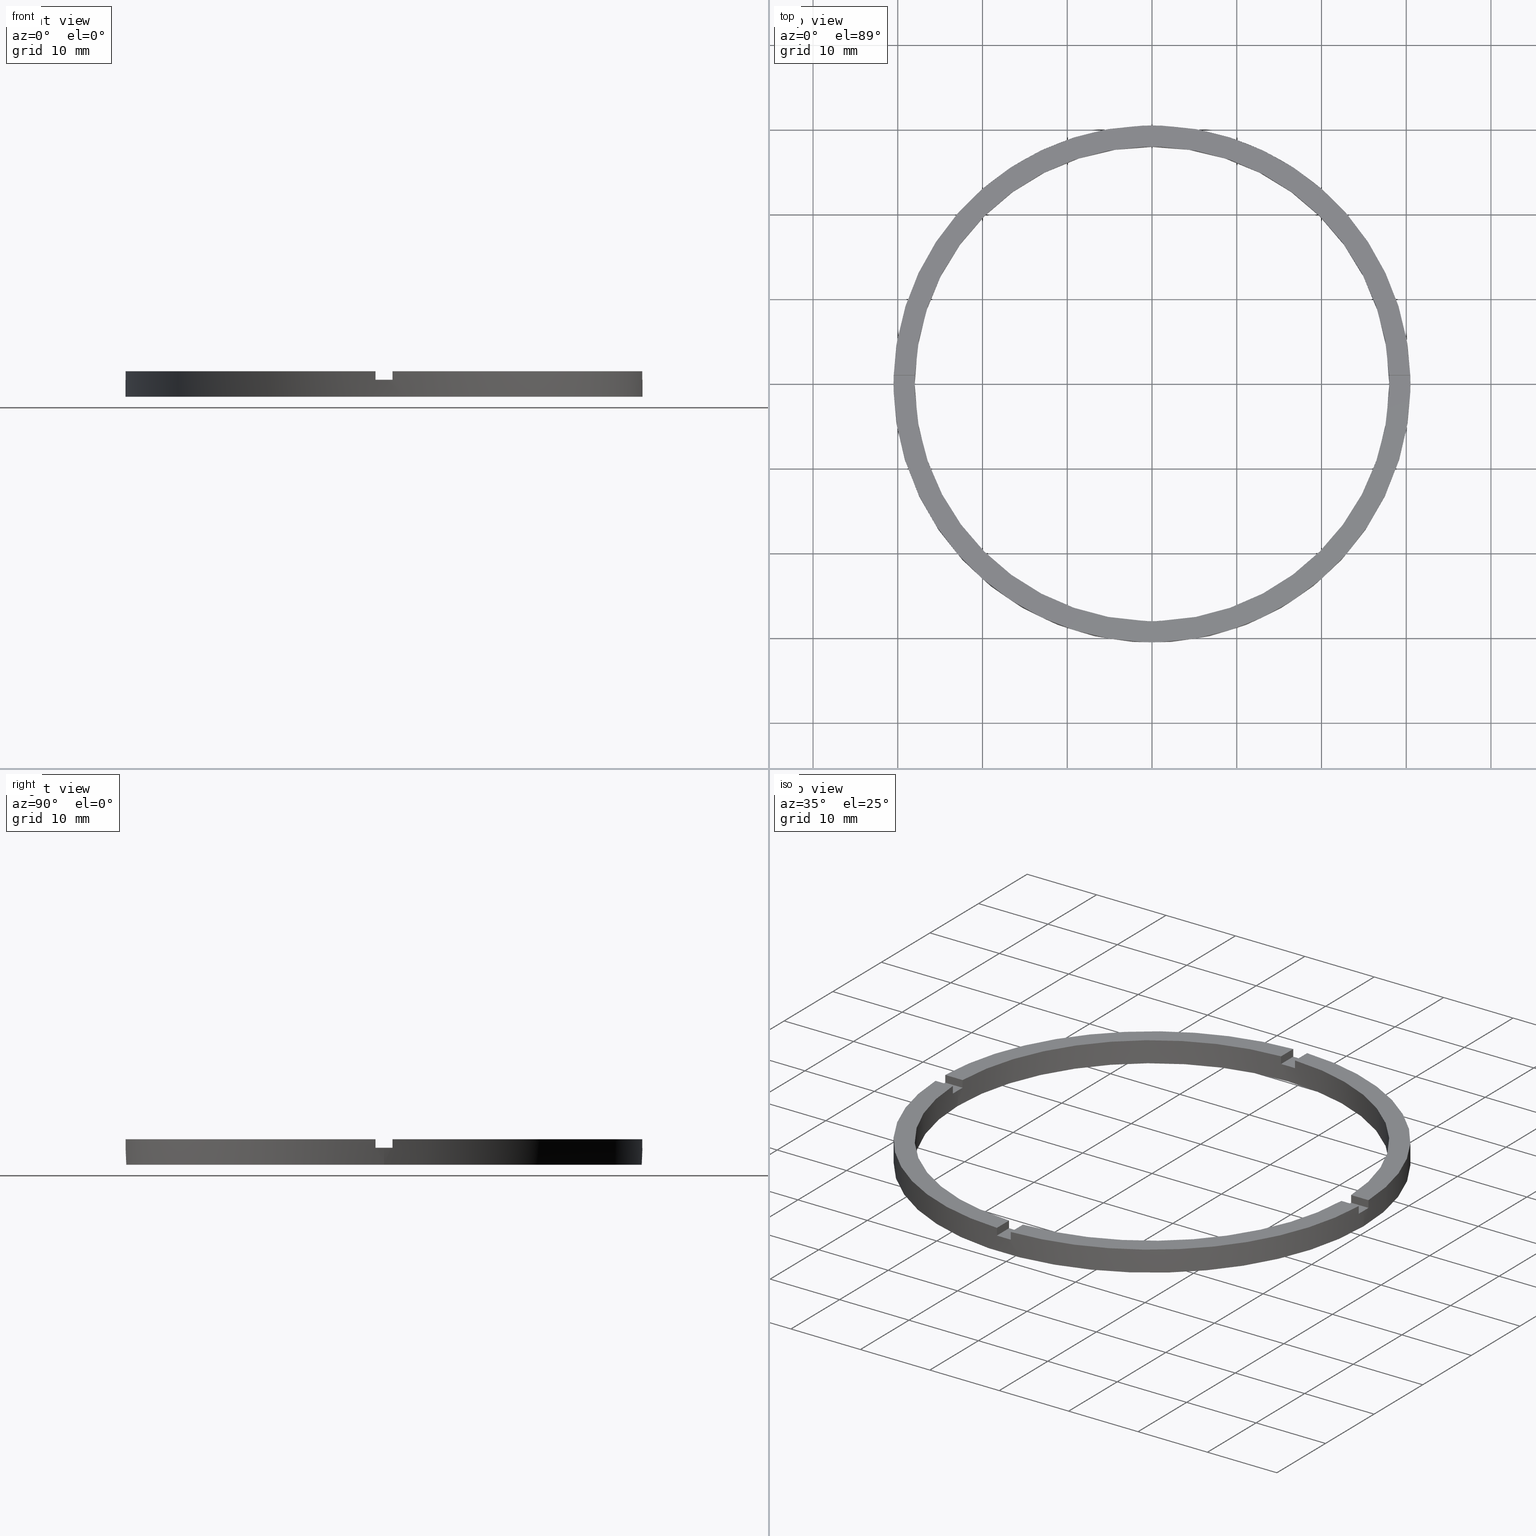
[diagram: canonical four-view strip — front | top / right | iso, engineering-drawing reading convention]
A machine part, canonical four-view strip (front | top / right | iso — engineering-drawing reading convention). The complete STEP part file that produces these views, byte-faithful:
ISO-10303-21;
HEADER;
FILE_DESCRIPTION (( 'STEP AP203' ),
    '1' );
FILE_NAME ('514127.step',
    '2024-12-26T02:40:05',
    ( 'MSI' ),
    ( '' ),
    'SwSTEP 2.0',
    'SolidWorks 2020',
    '' );
FILE_SCHEMA (( 'CONFIG_CONTROL_DESIGN' ));
ENDSEC;

DATA;
#1 = VERTEX_POINT ( 'NONE', #757 ) ;
#2 = ORIENTED_EDGE ( 'NONE', *, *, #357, .T. ) ;
#3 = ORIENTED_EDGE ( 'NONE', *, *, #407, .F. ) ;
#4 = CARTESIAN_POINT ( 'NONE',  ( 0.000000000000000000, 0.000000000000000000, 0.000000000000000000 ) ) ;
#5 = EDGE_CURVE ( 'NONE', #68, #734, #459, .T. ) ;
#6 = ORIENTED_EDGE ( 'NONE', *, *, #520, .T. ) ;
#7 = DIRECTION ( 'NONE',  ( 1.000000000000000000, 0.000000000000000000, 0.000000000000000000 ) ) ;
#8 = AXIS2_PLACEMENT_3D ( 'NONE', #144, #242, #662 ) ;
#9 = DIRECTION ( 'NONE',  ( -6.505213034913025371E-17, 1.000000000000000000, 0.000000000000000000 ) ) ;
#10 = DIRECTION ( 'NONE',  ( -0.000000000000000000, 0.000000000000000000, 1.000000000000000000 ) ) ;
#11 = CC_DESIGN_DATE_AND_TIME_ASSIGNMENT ( #123, #100, ( #300 ) ) ;
#12 = DIRECTION ( 'NONE',  ( 0.000000000000000000, 0.000000000000000000, 1.000000000000000000 ) ) ;
#13 = DIRECTION ( 'NONE',  ( 0.000000000000000000, 0.000000000000000000, 1.000000000000000000 ) ) ;
#14 = ORIENTED_EDGE ( 'NONE', *, *, #295, .F. ) ;
#15 = AXIS2_PLACEMENT_3D ( 'NONE', #275, #617, #88 ) ;
#16 = DIRECTION ( 'NONE',  ( 0.000000000000000000, -0.000000000000000000, 1.000000000000000000 ) ) ;
#17 = VERTEX_POINT ( 'NONE', #565 ) ;
#18 = DIRECTION ( 'NONE',  ( -0.000000000000000000, -0.000000000000000000, -1.000000000000000000 ) ) ;
#19 = ORIENTED_EDGE ( 'NONE', *, *, #604, .F. ) ;
#20 = EDGE_CURVE ( 'NONE', #248, #194, #464, .T. ) ;
#21 = CARTESIAN_POINT ( 'NONE',  ( -20.50000000000018119, -1.000000000000023537, 3.000000000000000000 ) ) ;
#22 = CARTESIAN_POINT ( 'NONE',  ( 0.000000000000000000, 0.000000000000000000, 0.000000000000000000 ) ) ;
#23 = CARTESIAN_POINT ( 'NONE',  ( 30.50000000000000000, 3.735172737399427541E-15, 0.000000000000000000 ) ) ;
#24 = EDGE_CURVE ( 'NONE', #505, #68, #465, .T. ) ;
#25 = ORIENTED_EDGE ( 'NONE', *, *, #213, .T. ) ;
#26 = ORIENTED_EDGE ( 'NONE', *, *, #118, .F. ) ;
#27 = EDGE_CURVE ( 'NONE', #454, #270, #457, .T. ) ;
#28 = ADVANCED_FACE ( 'NONE', ( #218 ), #311, .T. ) ;
#29 = CARTESIAN_POINT ( 'NONE',  ( -30.48360214935236101, -1.000000000000025313, 2.000000000000000000 ) ) ;
#30 = DIRECTION ( 'NONE',  ( -0.000000000000000000, -0.000000000000000000, -1.000000000000000000 ) ) ;
#31 = DATE_TIME_ROLE ( 'creation_date' ) ;
#32 = DIRECTION ( 'NONE',  ( 1.000000000000000000, 0.000000000000000000, 0.000000000000000000 ) ) ;
#33 = PERSON ( 'δָ��', 'δָ��', 'δָ��', ('δָ��'), ('δָ��'), ('δָ��') ) ;
#34 = DIRECTION ( 'NONE',  ( 0.000000000000000000, 0.000000000000000000, 1.000000000000000000 ) ) ;
#35 = PERSON_AND_ORGANIZATION_ROLE ( 'classification_officer' ) ;
#36 = EDGE_CURVE ( 'NONE', #444, #713, #472, .T. ) ;
#37 = LINE ( 'NONE', #595, #304 ) ;
#38 = ORIENTED_EDGE ( 'NONE', *, *, #375, .F. ) ;
#39 = VECTOR ( 'NONE', #370, 1000.000000000000000 ) ;
#40 = DIRECTION ( 'NONE',  ( 1.000000000000000000, 0.000000000000000000, 0.000000000000000000 ) ) ;
#41 = AXIS2_PLACEMENT_3D ( 'NONE', #683, #758, #222 ) ;
#42 = ORIENTED_EDGE ( 'NONE', *, *, #118, .T. ) ;
#43 = CIRCLE ( 'NONE', #59, 28.00000000000000000 ) ;
#44 = EDGE_LOOP ( 'NONE', ( #682, #172, #761, #439, #690, #313, #38, #245, #564, #226, #285, #19 ) ) ;
#45 = ORIENTED_EDGE ( 'NONE', *, *, #235, .F. ) ;
#46 = LINE ( 'NONE', #323, #310 ) ;
#47 = APPROVAL ( #461, 'δָ��' ) ;
#48 = CIRCLE ( 'NONE', #552, 30.50000000000000000 ) ;
#49 = ADVANCED_FACE ( 'NONE', ( #474 ), #128, .T. ) ;
#50 = PERSON_AND_ORGANIZATION_ROLE ( 'design_owner' ) ;
#51 = DIRECTION ( 'NONE',  ( -1.951563910473907735E-16, 1.000000000000000000, 0.000000000000000000 ) ) ;
#52 = EDGE_CURVE ( 'NONE', #431, #582, #219, .T. ) ;
#53 = ORIENTED_EDGE ( 'NONE', *, *, #670, .T. ) ;
#54 = ORIENTED_EDGE ( 'NONE', *, *, #571, .F. ) ;
#55 = CARTESIAN_POINT ( 'NONE',  ( -1.000000000000024425, 30.48360214935236101, 2.000000000000000000 ) ) ;
#56 = ORIENTED_EDGE ( 'NONE', *, *, #71, .F. ) ;
#57 = EDGE_LOOP ( 'NONE', ( #188, #568, #54, #527, #272, #451, #269, #587, #319, #530, #64, #3 ) ) ;
#58 = EDGE_CURVE ( 'NONE', #276, #462, #726, .T. ) ;
#59 = AXIS2_PLACEMENT_3D ( 'NONE', #659, #72, #615 ) ;
#60 = EDGE_LOOP ( 'NONE', ( #251, #708, #423, #752 ) ) ;
#61 = CLOSED_SHELL ( 'NONE', ( #590, #284, #624, #395, #216, #94, #467, #642, #678, #650, #347, #49, #106, #741, #354, #632, #331, #154, #387, #529, #28 ) ) ;
#62 = DIRECTION ( 'NONE',  ( -1.000000000000000000, 0.000000000000000000, 0.000000000000000000 ) ) ;
#63 = DIRECTION ( 'NONE',  ( 1.000000000000000000, 0.000000000000000000, 0.000000000000000000 ) ) ;
#64 = ORIENTED_EDGE ( 'NONE', *, *, #129, .T. ) ;
#65 = EDGE_CURVE ( 'NONE', #274, #781, #180, .T. ) ;
#66 = CARTESIAN_POINT ( 'NONE',  ( 0.000000000000000000, 0.000000000000000000, 2.000000000000000000 ) ) ;
#67 = ORIENTED_EDGE ( 'NONE', *, *, #163, .F. ) ;
#68 = VERTEX_POINT ( 'NONE', #417 ) ;
#69 = CIRCLE ( 'NONE', #480, 28.00000000000000000 ) ;
#70 = DIRECTION ( 'NONE',  ( -0.000000000000000000, -0.000000000000000000, -1.000000000000000000 ) ) ;
#71 = EDGE_CURVE ( 'NONE', #253, #198, #171, .T. ) ;
#72 = DIRECTION ( 'NONE',  ( 0.000000000000000000, 0.000000000000000000, 1.000000000000000000 ) ) ;
#73 = CARTESIAN_POINT ( 'NONE',  ( 0.000000000000000000, 0.000000000000000000, 3.000000000000000000 ) ) ;
#74 = CIRCLE ( 'NONE', #202, 30.50000000000000000 ) ;
#75 = VECTOR ( 'NONE', #70, 1000.000000000000000 ) ;
#76 = FACE_OUTER_BOUND ( 'NONE', #290, .T. ) ;
#77 = CARTESIAN_POINT ( 'NONE',  ( 0.000000000000000000, 0.000000000000000000, 2.000000000000000000 ) ) ;
#78 = CYLINDRICAL_SURFACE ( 'NONE', #687, 30.50000000000000000 ) ;
#79 = CIRCLE ( 'NONE', #779, 28.00000000000000000 ) ;
#80 = VECTOR ( 'NONE', #600, 1000.000000000000000 ) ;
#81 = EDGE_CURVE ( 'NONE', #186, #318, #722, .T. ) ;
#82 = CARTESIAN_POINT ( 'NONE',  ( -1.000000000000024425, 30.48360214935236101, 3.000000000000000000 ) ) ;
#83 = VECTOR ( 'NONE', #217, 1000.000000000000000 ) ;
#84 = DIRECTION ( 'NONE',  ( -0.000000000000000000, -1.000000000000000000, -0.000000000000000000 ) ) ;
#85 = AXIS2_PLACEMENT_3D ( 'NONE', #141, #557, #623 ) ;
#86 = LINE ( 'NONE', #161, #602 ) ;
#87 = VECTOR ( 'NONE', #30, 1000.000000000000000 ) ;
#88 = DIRECTION ( 'NONE',  ( 1.000000000000000000, 0.000000000000000000, 0.000000000000000000 ) ) ;
#89 = VECTOR ( 'NONE', #396, 1000.000000000000000 ) ;
#90 = FACE_OUTER_BOUND ( 'NONE', #44, .T. ) ;
#91 = LINE ( 'NONE', #750, #351 ) ;
#92 = LINE ( 'NONE', #517, #89 ) ;
#93 = DIRECTION ( 'NONE',  ( 1.000000000000000000, 0.000000000000000000, 0.000000000000000000 ) ) ;
#94 = ADVANCED_FACE ( 'NONE', ( #723 ), #501, .T. ) ;
#95 = PLANE ( 'NONE',  #237 ) ;
#96 = EDGE_CURVE ( 'NONE', #738, #261, #701, .T. ) ;
#97 = CIRCLE ( 'NONE', #369, 28.00000000000000000 ) ;
#98 = AXIS2_PLACEMENT_3D ( 'NONE', #469, #406, #518 ) ;
#99 = PLANE ( 'NONE',  #8 ) ;
#100 = DATE_TIME_ROLE ( 'classification_date' ) ;
#101 = EDGE_CURVE ( 'NONE', #783, #220, #455, .T. ) ;
#102 = CARTESIAN_POINT ( 'NONE',  ( 0.000000000000000000, 0.000000000000000000, 2.000000000000000000 ) ) ;
#103 = CARTESIAN_POINT ( 'NONE',  ( 0.000000000000000000, 0.000000000000000000, 3.000000000000000000 ) ) ;
#104 = UNCERTAINTY_MEASURE_WITH_UNIT (LENGTH_MEASURE( 1.000000000000000082E-05 ), #636, 'distance_accuracy_value', 'NONE');
#105 = AXIS2_PLACEMENT_3D ( 'NONE', #413, #250, #543 ) ;
#106 = ADVANCED_FACE ( 'NONE', ( #703 ), #314, .F. ) ;
#107 = CIRCLE ( 'NONE', #98, 30.50000000000000000 ) ;
#108 = FACE_OUTER_BOUND ( 'NONE', #57, .T. ) ;
#109 = DIRECTION ( 'NONE',  ( 1.000000000000000000, 0.000000000000000000, 0.000000000000000000 ) ) ;
#110 = LOCAL_TIME ( 10, 40, 5.000000000000000000, #392 ) ;
#111 = CALENDAR_DATE ( 2024, 26, 12 ) ;
#112 = CARTESIAN_POINT ( 'NONE',  ( 20.49999999999999289, 0.9999999999998406830, 2.000000000000000000 ) ) ;
#113 = CARTESIAN_POINT ( 'NONE',  ( -30.50000000000000000, 0.000000000000000000, 2.000000000000000000 ) ) ;
#114 = AXIS2_PLACEMENT_3D ( 'NONE', #127, #13, #63 ) ;
#115 = CC_DESIGN_PERSON_AND_ORGANIZATION_ASSIGNMENT ( #384, #579, ( #652 ) ) ;
#116 = LOCAL_TIME ( 10, 40, 5.000000000000000000, #386 ) ;
#117 = FACE_OUTER_BOUND ( 'NONE', #445, .T. ) ;
#118 = EDGE_CURVE ( 'NONE', #492, #435, #716, .T. ) ;
#119 = SHAPE_DEFINITION_REPRESENTATION ( #490, #401 ) ;
#120 = CIRCLE ( 'NONE', #671, 30.50000000000000000 ) ;
#121 = APPROVAL_PERSON_ORGANIZATION ( #371, #586, #298 ) ;
#122 = CARTESIAN_POINT ( 'NONE',  ( -1.000000000000024425, 27.98213715926644340, 3.000000000000000000 ) ) ;
#123 = DATE_AND_TIME ( #111, #125 ) ;
#124 = CARTESIAN_POINT ( 'NONE',  ( 0.000000000000000000, 0.000000000000000000, 3.000000000000000000 ) ) ;
#125 = LOCAL_TIME ( 10, 40, 5.000000000000000000, #367 ) ;
#126 = DATE_AND_TIME ( #633, #377 ) ;
#127 = CARTESIAN_POINT ( 'NONE',  ( 0.000000000000000000, 0.000000000000000000, 3.000000000000000000 ) ) ;
#128 = PLANE ( 'NONE',  #775 ) ;
#129 = EDGE_CURVE ( 'NONE', #198, #533, #711, .T. ) ;
#130 = DATE_AND_TIME ( #379, #368 ) ;
#131 = DIRECTION ( 'NONE',  ( 0.000000000000000000, 0.000000000000000000, 1.000000000000000000 ) ) ;
#132 = DIRECTION ( 'NONE',  ( 0.000000000000000000, 1.000000000000000000, 0.000000000000000000 ) ) ;
#133 = CARTESIAN_POINT ( 'NONE',  ( -20.50000000000018119, 0.9999999999999765743, 3.000000000000000000 ) ) ;
#134 = CARTESIAN_POINT ( 'NONE',  ( 30.48360214935236456, 0.9999999999998412381, 2.000000000000000000 ) ) ;
#135 = CARTESIAN_POINT ( 'NONE',  ( 0.000000000000000000, 0.000000000000000000, 3.000000000000000000 ) ) ;
#136 = DIRECTION ( 'NONE',  ( -0.000000000000000000, 0.000000000000000000, 1.000000000000000000 ) ) ;
#137 = CARTESIAN_POINT ( 'NONE',  ( 30.50000000000000000, 3.735172737399427541E-15, 2.000000000000000000 ) ) ;
#138 = CARTESIAN_POINT ( 'NONE',  ( -30.48360214935236101, -1.000000000000025313, 3.000000000000000000 ) ) ;
#139 = CARTESIAN_POINT ( 'NONE',  ( 0.9999999999998371303, -20.50000000000017764, 2.000000000000000000 ) ) ;
#140 = AXIS2_PLACEMENT_3D ( 'NONE', #727, #704, #364 ) ;
#141 = CARTESIAN_POINT ( 'NONE',  ( 0.000000000000000000, 0.000000000000000000, 3.000000000000000000 ) ) ;
#142 = CARTESIAN_POINT ( 'NONE',  ( -1.000000000000162759, -20.50000000000017764, 2.000000000000000000 ) ) ;
#143 = PERSON_AND_ORGANIZATION_ROLE ( 'creator' ) ;
#144 = CARTESIAN_POINT ( 'NONE',  ( 20.49999999999999289, -1.000000000000159428, 2.000000000000000000 ) ) ;
#145 = CARTESIAN_POINT ( 'NONE',  ( 20.49999999999999289, -1.000000000000159428, 3.000000000000000000 ) ) ;
#146 = APPROVAL_ROLE ( '' ) ;
#147 = EDGE_CURVE ( 'NONE', #783, #270, #695, .T. ) ;
#148 = AXIS2_PLACEMENT_3D ( 'NONE', #478, #51, #358 ) ;
#149 = DIRECTION ( 'NONE',  ( 1.000000000000000000, 0.000000000000000000, 0.000000000000000000 ) ) ;
#150 = DIRECTION ( 'NONE',  ( 1.951563910473907735E-16, -1.000000000000000000, 0.000000000000000000 ) ) ;
#151 = AXIS2_PLACEMENT_3D ( 'NONE', #103, #210, #223 ) ;
#152 = EDGE_LOOP ( 'NONE', ( #560, #563, #515, #256, #764, #715 ) ) ;
#153 = AXIS2_PLACEMENT_3D ( 'NONE', #66, #422, #620 ) ;
#154 = ADVANCED_FACE ( 'NONE', ( #183 ), #292, .T. ) ;
#155 = EDGE_LOOP ( 'NONE', ( #767, #241, #25, #762, #681, #558, #504, #468, #427, #554, #496, #436 ) ) ;
#156 = EDGE_CURVE ( 'NONE', #444, #500, #447, .T. ) ;
#157 = ORIENTED_EDGE ( 'NONE', *, *, #52, .T. ) ;
#158 = PLANE ( 'NONE',  #148 ) ;
#159 = ORIENTED_EDGE ( 'NONE', *, *, #357, .F. ) ;
#160 = VERTEX_POINT ( 'NONE', #315 ) ;
#161 = CARTESIAN_POINT ( 'NONE',  ( -20.50000000000018119, 0.9999999999999765743, 2.000000000000000000 ) ) ;
#162 = DIRECTION ( 'NONE',  ( 1.000000000000000000, 0.000000000000000000, 0.000000000000000000 ) ) ;
#163 = EDGE_CURVE ( 'NONE', #322, #160, #448, .T. ) ;
#164 = ORIENTED_EDGE ( 'NONE', *, *, #213, .F. ) ;
#165 = AXIS2_PLACEMENT_3D ( 'NONE', #73, #673, #491 ) ;
#166 = DIRECTION ( 'NONE',  ( -0.000000000000000000, -0.000000000000000000, -1.000000000000000000 ) ) ;
#167 = VECTOR ( 'NONE', #740, 1000.000000000000000 ) ;
#168 = DIRECTION ( 'NONE',  ( -1.301042606982605074E-16, 1.000000000000000000, -0.000000000000000000 ) ) ;
#169 = ORIENTED_EDGE ( 'NONE', *, *, #657, .T. ) ;
#170 = ORIENTED_EDGE ( 'NONE', *, *, #338, .F. ) ;
#171 = LINE ( 'NONE', #365, #709 ) ;
#172 = ORIENTED_EDGE ( 'NONE', *, *, #612, .T. ) ;
#173 = VECTOR ( 'NONE', #609, 1000.000000000000000 ) ;
#174 = EDGE_LOOP ( 'NONE', ( #484, #686, #203, #471 ) ) ;
#175 = LINE ( 'NONE', #388, #199 ) ;
#176 = CARTESIAN_POINT ( 'NONE',  ( -1.000000000000161871, -27.98213715926643985, 3.000000000000000000 ) ) ;
#177 = ORIENTED_EDGE ( 'NONE', *, *, #657, .F. ) ;
#178 = EDGE_LOOP ( 'NONE', ( #232, #416, #215, #693 ) ) ;
#179 = EDGE_CURVE ( 'NONE', #186, #425, #192, .T. ) ;
#180 = LINE ( 'NONE', #559, #206 ) ;
#181 = ORIENTED_EDGE ( 'NONE', *, *, #629, .T. ) ;
#182 = DIRECTION ( 'NONE',  ( 1.000000000000000000, 1.951563910473907735E-16, -0.000000000000000000 ) ) ;
#183 = FACE_OUTER_BOUND ( 'NONE', #152, .T. ) ;
#184 = AXIS2_PLACEMENT_3D ( 'NONE', #346, #576, #516 ) ;
#185 = ORIENTED_EDGE ( 'NONE', *, *, #101, .F. ) ;
#186 = VERTEX_POINT ( 'NONE', #441 ) ;
#187 = LINE ( 'NONE', #493, #440 ) ;
#188 = ORIENTED_EDGE ( 'NONE', *, *, #81, .T. ) ;
#189 = DIRECTION ( 'NONE',  ( 0.000000000000000000, 0.000000000000000000, 1.000000000000000000 ) ) ;
#190 = ORIENTED_EDGE ( 'NONE', *, *, #756, .T. ) ;
#191 = DIRECTION ( 'NONE',  ( 1.000000000000000000, 0.000000000000000000, 0.000000000000000000 ) ) ;
#192 = LINE ( 'NONE', #424, #433 ) ;
#193 = DESIGN_CONTEXT ( 'detailed design', #340, 'design' ) ;
#194 = VERTEX_POINT ( 'NONE', #134 ) ;
#195 = FACE_OUTER_BOUND ( 'NONE', #537, .T. ) ;
#196 = DIRECTION ( 'NONE',  ( 0.000000000000000000, 0.000000000000000000, 1.000000000000000000 ) ) ;
#197 = ORIENTED_EDGE ( 'NONE', *, *, #756, .F. ) ;
#198 = VERTEX_POINT ( 'NONE', #495 ) ;
#199 = VECTOR ( 'NONE', #749, 1000.000000000000000 ) ;
#200 = DIRECTION ( 'NONE',  ( 1.000000000000000000, 0.000000000000000000, 0.000000000000000000 ) ) ;
#201 = VECTOR ( 'NONE', #514, 1000.000000000000000 ) ;
#202 = AXIS2_PLACEMENT_3D ( 'NONE', #234, #297, #653 ) ;
#203 = ORIENTED_EDGE ( 'NONE', *, *, #208, .F. ) ;
#204 = VECTOR ( 'NONE', #669, 1000.000000000000000 ) ;
#205 = ORIENTED_EDGE ( 'NONE', *, *, #476, .F. ) ;
#206 = VECTOR ( 'NONE', #132, 1000.000000000000000 ) ;
#207 = DIRECTION ( 'NONE',  ( 0.000000000000000000, 0.000000000000000000, 1.000000000000000000 ) ) ;
#208 = EDGE_CURVE ( 'NONE', #462, #718, #438, .T. ) ;
#209 = DIRECTION ( 'NONE',  ( 1.000000000000000000, 1.301042606982605074E-16, 0.000000000000000000 ) ) ;
#210 = DIRECTION ( 'NONE',  ( -0.000000000000000000, -0.000000000000000000, -1.000000000000000000 ) ) ;
#211 = CARTESIAN_POINT ( 'NONE',  ( 0.000000000000000000, 0.000000000000000000, 2.000000000000000000 ) ) ;
#212 = ORIENTED_EDGE ( 'NONE', *, *, #629, .F. ) ;
#213 = EDGE_CURVE ( 'NONE', #425, #17, #187, .T. ) ;
#214 = VECTOR ( 'NONE', #260, 1000.000000000000000 ) ;
#215 = ORIENTED_EDGE ( 'NONE', *, *, #5, .T. ) ;
#216 = ADVANCED_FACE ( 'NONE', ( #195 ), #613, .T. ) ;
#217 = DIRECTION ( 'NONE',  ( -1.000000000000000000, -6.505213034913025371E-17, -0.000000000000000000 ) ) ;
#218 = FACE_OUTER_BOUND ( 'NONE', #577, .T. ) ;
#219 = LINE ( 'NONE', #437, #221 ) ;
#220 = VERTEX_POINT ( 'NONE', #667 ) ;
#221 = VECTOR ( 'NONE', #84, 1000.000000000000000 ) ;
#222 = DIRECTION ( 'NONE',  ( 1.000000000000000000, 0.000000000000000000, 0.000000000000000000 ) ) ;
#223 = DIRECTION ( 'NONE',  ( -1.000000000000000000, 0.000000000000000000, 0.000000000000000000 ) ) ;
#224 = ORIENTED_EDGE ( 'NONE', *, *, #27, .F. ) ;
#225 = AXIS2_PLACEMENT_3D ( 'NONE', #77, #278, #254 ) ;
#226 = ORIENTED_EDGE ( 'NONE', *, *, #389, .T. ) ;
#227 = CARTESIAN_POINT ( 'NONE',  ( 30.50000000000000000, 3.735172737399427541E-15, 3.000000000000000000 ) ) ;
#228 = APPROVAL_STATUS ( 'not_yet_approved' ) ;
#229 = LINE ( 'NONE', #421, #481 ) ;
#230 = EDGE_LOOP ( 'NONE', ( #705, #170, #205, #305 ) ) ;
#231 = FACE_OUTER_BOUND ( 'NONE', #60, .T. ) ;
#232 = ORIENTED_EDGE ( 'NONE', *, *, #654, .F. ) ;
#233 = CC_DESIGN_PERSON_AND_ORGANIZATION_ASSIGNMENT ( #639, #143, ( #434 ) ) ;
#234 = CARTESIAN_POINT ( 'NONE',  ( 0.000000000000000000, 0.000000000000000000, 0.000000000000000000 ) ) ;
#235 = EDGE_CURVE ( 'NONE', #698, #435, #458, .T. ) ;
#236 = APPLICATION_CONTEXT ( 'configuration controlled 3d designs of mechanical parts and assemblies' ) ;
#237 = AXIS2_PLACEMENT_3D ( 'NONE', #142, #335, #570 ) ;
#238 = ORIENTED_EDGE ( 'NONE', *, *, #670, .F. ) ;
#239 = EDGE_CURVE ( 'NONE', #431, #160, #714, .T. ) ;
#240 = DIRECTION ( 'NONE',  ( -1.000000000000000000, -1.951563910473907735E-16, 0.000000000000000000 ) ) ;
#241 = ORIENTED_EDGE ( 'NONE', *, *, #770, .F. ) ;
#242 = DIRECTION ( 'NONE',  ( 6.505213034913025371E-17, -1.000000000000000000, 0.000000000000000000 ) ) ;
#243 = VERTEX_POINT ( 'NONE', #374 ) ;
#244 = CARTESIAN_POINT ( 'NONE',  ( 0.000000000000000000, 0.000000000000000000, 3.000000000000000000 ) ) ;
#245 = ORIENTED_EDGE ( 'NONE', *, *, #747, .T. ) ;
#246 = AXIS2_PLACEMENT_3D ( 'NONE', #405, #522, #575 ) ;
#247 = LINE ( 'NONE', #277, #768 ) ;
#248 = VERTEX_POINT ( 'NONE', #137 ) ;
#249 = FACE_BOUND ( 'NONE', #328, .T. ) ;
#250 = DIRECTION ( 'NONE',  ( 0.000000000000000000, 0.000000000000000000, 1.000000000000000000 ) ) ;
#251 = ORIENTED_EDGE ( 'NONE', *, *, #58, .T. ) ;
#252 = DIRECTION ( 'NONE',  ( 0.000000000000000000, 0.000000000000000000, 1.000000000000000000 ) ) ;
#253 = VERTEX_POINT ( 'NONE', #327 ) ;
#254 = DIRECTION ( 'NONE',  ( 1.000000000000000000, 0.000000000000000000, 0.000000000000000000 ) ) ;
#255 = ORIENTED_EDGE ( 'NONE', *, *, #96, .T. ) ;
#256 = ORIENTED_EDGE ( 'NONE', *, *, #612, .F. ) ;
#257 = DIRECTION ( 'NONE',  ( -1.000000000000000000, -6.505213034913025371E-17, 0.000000000000000000 ) ) ;
#258 = DIRECTION ( 'NONE',  ( 1.000000000000000000, 0.000000000000000000, -0.000000000000000000 ) ) ;
#259 = ORIENTED_EDGE ( 'NONE', *, *, #65, .T. ) ;
#260 = DIRECTION ( 'NONE',  ( -0.000000000000000000, -0.000000000000000000, -1.000000000000000000 ) ) ;
#261 = VERTEX_POINT ( 'NONE', #268 ) ;
#262 = ORIENTED_EDGE ( 'NONE', *, *, #239, .F. ) ;
#263 = ORIENTED_EDGE ( 'NONE', *, *, #295, .T. ) ;
#264 = CARTESIAN_POINT ( 'NONE',  ( 30.48360214935235390, -1.000000000000158762, 2.000000000000000000 ) ) ;
#265 = CARTESIAN_POINT ( 'NONE',  ( -30.48360214935236101, -1.000000000000025313, 3.000000000000000000 ) ) ;
#266 = EDGE_CURVE ( 'NONE', #431, #492, #175, .T. ) ;
#267 = EDGE_LOOP ( 'NONE', ( #282, #534, #706, #238 ) ) ;
#268 = CARTESIAN_POINT ( 'NONE',  ( 27.98213715926645051, 0.9999999999998411271, 2.000000000000000000 ) ) ;
#269 = ORIENTED_EDGE ( 'NONE', *, *, #338, .T. ) ;
#270 = VERTEX_POINT ( 'NONE', #29 ) ;
#271 = CARTESIAN_POINT ( 'NONE',  ( -1.000000000000024425, 27.98213715926644340, 2.000000000000000000 ) ) ;
#272 = ORIENTED_EDGE ( 'NONE', *, *, #156, .T. ) ;
#273 = MANIFOLD_SOLID_BREP ( '�г�-����1', #61 ) ;
#274 = VERTEX_POINT ( 'NONE', #320 ) ;
#275 = CARTESIAN_POINT ( 'NONE',  ( 0.000000000000000000, 0.000000000000000000, 2.000000000000000000 ) ) ;
#276 = VERTEX_POINT ( 'NONE', #503 ) ;
#277 = CARTESIAN_POINT ( 'NONE',  ( 0.9999999999999754641, 20.49999999999999645, 2.000000000000000000 ) ) ;
#278 = DIRECTION ( 'NONE',  ( 0.000000000000000000, 0.000000000000000000, 1.000000000000000000 ) ) ;
#279 = AXIS2_PLACEMENT_3D ( 'NONE', #211, #442, #109 ) ;
#280 = CARTESIAN_POINT ( 'NONE',  ( 28.00000000000000000, 3.429011037612589276E-15, 2.000000000000000000 ) ) ;
#281 = PLANE ( 'NONE',  #677 ) ;
#282 = ORIENTED_EDGE ( 'NONE', *, *, #548, .F. ) ;
#283 = DIRECTION ( 'NONE',  ( 1.000000000000000000, 0.000000000000000000, 0.000000000000000000 ) ) ;
#284 = ADVANCED_FACE ( 'NONE', ( #463 ), #641, .T. ) ;
#285 = ORIENTED_EDGE ( 'NONE', *, *, #36, .T. ) ;
#286 = CARTESIAN_POINT ( 'NONE',  ( 0.000000000000000000, 0.000000000000000000, 3.000000000000000000 ) ) ;
#287 = DIRECTION ( 'NONE',  ( 1.000000000000000000, 6.505213034913025371E-17, 0.000000000000000000 ) ) ;
#288 = CARTESIAN_POINT ( 'NONE',  ( 0.000000000000000000, 0.000000000000000000, 2.000000000000000000 ) ) ;
#289 = AXIS2_PLACEMENT_3D ( 'NONE', #244, #535, #62 ) ;
#290 = EDGE_LOOP ( 'NONE', ( #744, #475, #14, #224 ) ) ;
#291 = DIRECTION ( 'NONE',  ( 0.000000000000000000, 0.000000000000000000, -1.000000000000000000 ) ) ;
#292 = PLANE ( 'NONE',  #184 ) ;
#293 = CARTESIAN_POINT ( 'NONE',  ( 0.000000000000000000, 0.000000000000000000, 3.000000000000000000 ) ) ;
#294 = MECHANICAL_CONTEXT ( 'NONE', #236, 'mechanical' ) ;
#295 = EDGE_CURVE ( 'NONE', #270, #500, #634, .T. ) ;
#296 = AXIS2_PLACEMENT_3D ( 'NONE', #309, #10, #415 ) ;
#297 = DIRECTION ( 'NONE',  ( 0.000000000000000000, 0.000000000000000000, 1.000000000000000000 ) ) ;
#298 = APPROVAL_ROLE ( '' ) ;
#299 = ORIENTED_EDGE ( 'NONE', *, *, #473, .F. ) ;
#300 = SECURITY_CLASSIFICATION ( '', '', #644 ) ;
#301 = DIRECTION ( 'NONE',  ( 0.000000000000000000, 0.000000000000000000, 1.000000000000000000 ) ) ;
#302 = ORIENTED_EDGE ( 'NONE', *, *, #307, .F. ) ;
#303 = PRODUCT ( '514127', '514127', '', ( #294 ) ) ;
#304 = VECTOR ( 'NONE', #782, 1000.000000000000000 ) ;
#305 = ORIENTED_EDGE ( 'NONE', *, *, #540, .T. ) ;
#306 = FACE_OUTER_BOUND ( 'NONE', #326, .T. ) ;
#307 = EDGE_CURVE ( 'NONE', #220, #730, #120, .T. ) ;
#308 = CARTESIAN_POINT ( 'NONE',  ( 30.48360214935236456, 0.9999999999998412381, 3.000000000000000000 ) ) ;
#309 = CARTESIAN_POINT ( 'NONE',  ( 0.000000000000000000, 0.000000000000000000, 2.000000000000000000 ) ) ;
#310 = VECTOR ( 'NONE', #668, 1000.000000000000000 ) ;
#311 = PLANE ( 'NONE',  #153 ) ;
#312 = EDGE_CURVE ( 'NONE', #324, #492, #378, .T. ) ;
#313 = ORIENTED_EDGE ( 'NONE', *, *, #235, .T. ) ;
#314 = PLANE ( 'NONE',  #751 ) ;
#315 = CARTESIAN_POINT ( 'NONE',  ( -30.48360214935236101, 0.9999999999999746869, 3.000000000000000000 ) ) ;
#316 = AXIS2_PLACEMENT_3D ( 'NONE', #618, #207, #742 ) ;
#317 = ORIENTED_EDGE ( 'NONE', *, *, #694, .F. ) ;
#318 = VERTEX_POINT ( 'NONE', #280 ) ;
#319 = ORIENTED_EDGE ( 'NONE', *, *, #382, .T. ) ;
#320 = CARTESIAN_POINT ( 'NONE',  ( 0.9999999999999754641, 27.98213715926644696, 3.000000000000000000 ) ) ;
#321 = VERTEX_POINT ( 'NONE', #393 ) ;
#322 = VERTEX_POINT ( 'NONE', #511 ) ;
#323 = CARTESIAN_POINT ( 'NONE',  ( -1.000000000000161648, -30.48360214935235390, 3.000000000000000000 ) ) ;
#324 = VERTEX_POINT ( 'NONE', #627 ) ;
#325 = DIRECTION ( 'NONE',  ( 0.000000000000000000, 0.000000000000000000, 1.000000000000000000 ) ) ;
#326 = EDGE_LOOP ( 'NONE', ( #699, #317, #177, #778 ) ) ;
#327 = CARTESIAN_POINT ( 'NONE',  ( 0.9999999999998384625, -30.48360214935236456, 3.000000000000000000 ) ) ;
#328 = EDGE_LOOP ( 'NONE', ( #509, #414 ) ) ;
#329 = ORIENTED_EDGE ( 'NONE', *, *, #375, .T. ) ;
#330 = LINE ( 'NONE', #308, #75 ) ;
#331 = ADVANCED_FACE ( 'NONE', ( #117 ), #99, .F. ) ;
#332 = LINE ( 'NONE', #635, #83 ) ;
#333 = DIRECTION ( 'NONE',  ( -1.301042606982605074E-16, 1.000000000000000000, 0.000000000000000000 ) ) ;
#334 = CARTESIAN_POINT ( 'NONE',  ( -20.50000000000018119, -1.000000000000023537, 2.000000000000000000 ) ) ;
#335 = DIRECTION ( 'NONE',  ( -1.000000000000000000, -1.301042606982605074E-16, 0.000000000000000000 ) ) ;
#336 = CC_DESIGN_APPROVAL ( #47, ( #652 ) ) ;
#337 = LINE ( 'NONE', #532, #594 ) ;
#338 = EDGE_CURVE ( 'NONE', #243, #68, #381, .T. ) ;
#339 = CARTESIAN_POINT ( 'NONE',  ( -1.000000000000162759, -20.50000000000017764, 3.000000000000000000 ) ) ;
#340 = APPLICATION_CONTEXT ( 'configuration controlled 3d designs of mechanical parts and assemblies' ) ;
#341 = AXIS2_PLACEMENT_3D ( 'NONE', #430, #12, #412 ) ;
#342 = LINE ( 'NONE', #759, #603 ) ;
#343 = FACE_OUTER_BOUND ( 'NONE', #539, .T. ) ;
#344 = CIRCLE ( 'NONE', #735, 28.00000000000000000 ) ;
#345 = CARTESIAN_POINT ( 'NONE',  ( 30.48360214935236456, 0.9999999999998412381, 3.000000000000000000 ) ) ;
#346 = CARTESIAN_POINT ( 'NONE',  ( 0.000000000000000000, 0.000000000000000000, 2.000000000000000000 ) ) ;
#347 = ADVANCED_FACE ( 'NONE', ( #385 ), #158, .F. ) ;
#348 = CARTESIAN_POINT ( 'NONE',  ( 0.000000000000000000, 0.000000000000000000, 3.000000000000000000 ) ) ;
#349 = LINE ( 'NONE', #145, #599 ) ;
#350 = VECTOR ( 'NONE', #466, 1000.000000000000000 ) ;
#351 = VECTOR ( 'NONE', #684, 1000.000000000000000 ) ;
#352 = LINE ( 'NONE', #112, #80 ) ;
#353 = CIRCLE ( 'NONE', #453, 30.50000000000000000 ) ;
#354 = ADVANCED_FACE ( 'NONE', ( #231 ), #411, .T. ) ;
#355 = FACE_OUTER_BOUND ( 'NONE', #155, .T. ) ;
#356 = CARTESIAN_POINT ( 'NONE',  ( -27.98213715926644696, 0.9999999999999751310, 2.000000000000000000 ) ) ;
#357 = EDGE_CURVE ( 'NONE', #324, #781, #739, .T. ) ;
#358 = DIRECTION ( 'NONE',  ( -1.000000000000000000, -1.951563910473907735E-16, 0.000000000000000000 ) ) ;
#359 = DIRECTION ( 'NONE',  ( 1.000000000000000000, -0.000000000000000000, 0.000000000000000000 ) ) ;
#360 = EDGE_CURVE ( 'NONE', #572, #322, #746, .T. ) ;
#361 = AXIS2_PLACEMENT_3D ( 'NONE', #286, #523, #32 ) ;
#362 = DATE_AND_TIME ( #390, #110 ) ;
#363 = CARTESIAN_POINT ( 'NONE',  ( 20.49999999999999289, 0.9999999999998406830, 2.000000000000000000 ) ) ;
#364 = DIRECTION ( 'NONE',  ( 1.000000000000000000, 0.000000000000000000, 0.000000000000000000 ) ) ;
#365 = CARTESIAN_POINT ( 'NONE',  ( 0.9999999999998371303, -20.50000000000017764, 3.000000000000000000 ) ) ;
#366 = CC_DESIGN_PERSON_AND_ORGANIZATION_ASSIGNMENT ( #651, #35, ( #300 ) ) ;
#367 = COORDINATED_UNIVERSAL_TIME_OFFSET ( 8, 0, .AHEAD. ) ;
#368 = LOCAL_TIME ( 10, 40, 5.000000000000000000, #373 ) ;
#369 = AXIS2_PLACEMENT_3D ( 'NONE', #397, #585, #283 ) ;
#370 = DIRECTION ( 'NONE',  ( 0.000000000000000000, 0.000000000000000000, 1.000000000000000000 ) ) ;
#371 = PERSON_AND_ORGANIZATION ( #33, #380 ) ;
#372 = CARTESIAN_POINT ( 'NONE',  ( 0.000000000000000000, 0.000000000000000000, 2.000000000000000000 ) ) ;
#373 = COORDINATED_UNIVERSAL_TIME_OFFSET ( 8, 0, .AHEAD. ) ;
#374 = CARTESIAN_POINT ( 'NONE',  ( -27.98213715926644340, -1.000000000000024869, 3.000000000000000000 ) ) ;
#375 = EDGE_CURVE ( 'NONE', #582, #435, #229, .T. ) ;
#376 = PERSON_AND_ORGANIZATION ( #33, #380 ) ;
#377 = LOCAL_TIME ( 10, 40, 5.000000000000000000, #637 ) ;
#378 = CIRCLE ( 'NONE', #614, 30.50000000000000000 ) ;
#379 = CALENDAR_DATE ( 2024, 26, 12 ) ;
#380 = ORGANIZATION ( 'δָ��', 'δָ��', '' ) ;
#381 = CIRCLE ( 'NONE', #114, 28.00000000000000000 ) ;
#382 = EDGE_CURVE ( 'NONE', #505, #718, #748, .T. ) ;
#383 = AXIS2_PLACEMENT_3D ( 'NONE', #658, #359, #291 ) ;
#384 = PERSON_AND_ORGANIZATION ( #33, #380 ) ;
#385 = FACE_OUTER_BOUND ( 'NONE', #267, .T. ) ;
#386 = COORDINATED_UNIVERSAL_TIME_OFFSET ( 8, 0, .AHEAD. ) ;
#387 = ADVANCED_FACE ( 'NONE', ( #553 ), #551, .F. ) ;
#388 = CARTESIAN_POINT ( 'NONE',  ( -1.000000000000024425, 30.48360214935236101, 3.000000000000000000 ) ) ;
#389 = EDGE_CURVE ( 'NONE', #572, #444, #43, .T. ) ;
#390 = CALENDAR_DATE ( 2024, 26, 12 ) ;
#391 = EDGE_CURVE ( 'NONE', #253, #462, #37, .T. ) ;
#392 = COORDINATED_UNIVERSAL_TIME_OFFSET ( 8, 0, .AHEAD. ) ;
#393 = CARTESIAN_POINT ( 'NONE',  ( -30.48360214935236101, 0.9999999999999746869, 2.000000000000000000 ) ) ;
#394 = APPROVAL_DATE_TIME ( #130, #47 ) ;
#395 = ADVANCED_FACE ( 'NONE', ( #306 ), #482, .T. ) ;
#396 = DIRECTION ( 'NONE',  ( 0.000000000000000000, 0.000000000000000000, 1.000000000000000000 ) ) ;
#397 = CARTESIAN_POINT ( 'NONE',  ( 0.000000000000000000, 0.000000000000000000, 3.000000000000000000 ) ) ;
#398 = DIRECTION ( 'NONE',  ( 0.000000000000000000, 0.000000000000000000, 1.000000000000000000 ) ) ;
#399 = DIRECTION ( 'NONE',  ( 1.301042606982605074E-16, -1.000000000000000000, 0.000000000000000000 ) ) ;
#400 = CARTESIAN_POINT ( 'NONE',  ( 0.000000000000000000, 0.000000000000000000, 0.000000000000000000 ) ) ;
#401 = ADVANCED_BREP_SHAPE_REPRESENTATION ( '514127', ( #273, #725 ), #621 ) ;
#402 = DIRECTION ( 'NONE',  ( 0.000000000000000000, 0.000000000000000000, 1.000000000000000000 ) ) ;
#403 = AXIS2_PLACEMENT_3D ( 'NONE', #102, #398, #149 ) ;
#404 = CC_DESIGN_APPROVAL ( #586, ( #434 ) ) ;
#405 = CARTESIAN_POINT ( 'NONE',  ( 0.000000000000000000, 0.000000000000000000, 0.000000000000000000 ) ) ;
#406 = DIRECTION ( 'NONE',  ( 0.000000000000000000, 0.000000000000000000, 1.000000000000000000 ) ) ;
#407 = EDGE_CURVE ( 'NONE', #186, #533, #555, .T. ) ;
#408 = DIRECTION ( 'NONE',  ( -1.000000000000000000, 0.000000000000000000, 0.000000000000000000 ) ) ;
#409 = AXIS2_PLACEMENT_3D ( 'NONE', #135, #196, #672 ) ;
#410 = CARTESIAN_POINT ( 'NONE',  ( 0.000000000000000000, 0.000000000000000000, 3.000000000000000000 ) ) ;
#411 = PLANE ( 'NONE',  #140 ) ;
#412 = DIRECTION ( 'NONE',  ( 1.000000000000000000, 0.000000000000000000, -0.000000000000000000 ) ) ;
#413 = CARTESIAN_POINT ( 'NONE',  ( 0.000000000000000000, 0.000000000000000000, 3.000000000000000000 ) ) ;
#414 = ORIENTED_EDGE ( 'NONE', *, *, #604, .T. ) ;
#415 = DIRECTION ( 'NONE',  ( 1.000000000000000000, 0.000000000000000000, 0.000000000000000000 ) ) ;
#416 = ORIENTED_EDGE ( 'NONE', *, *, #24, .T. ) ;
#417 = CARTESIAN_POINT ( 'NONE',  ( -1.000000000000161871, -27.98213715926643985, 3.000000000000000000 ) ) ;
#418 = ORIENTED_EDGE ( 'NONE', *, *, #645, .T. ) ;
#419 = DIRECTION ( 'NONE',  ( 0.000000000000000000, 0.000000000000000000, 1.000000000000000000 ) ) ;
#420 = EDGE_CURVE ( 'NONE', #253, #17, #48, .T. ) ;
#421 = CARTESIAN_POINT ( 'NONE',  ( -1.000000000000024425, 27.98213715926644340, 3.000000000000000000 ) ) ;
#422 = DIRECTION ( 'NONE',  ( 0.000000000000000000, -0.000000000000000000, 1.000000000000000000 ) ) ;
#423 = ORIENTED_EDGE ( 'NONE', *, *, #382, .F. ) ;
#424 = CARTESIAN_POINT ( 'NONE',  ( 20.49999999999999289, -1.000000000000159428, 2.000000000000000000 ) ) ;
#425 = VERTEX_POINT ( 'NONE', #264 ) ;
#426 = CARTESIAN_POINT ( 'NONE',  ( 0.9999999999998384625, -30.48360214935236456, 2.000000000000000000 ) ) ;
#427 = ORIENTED_EDGE ( 'NONE', *, *, #27, .T. ) ;
#428 = DIRECTION ( 'NONE',  ( 0.000000000000000000, 0.000000000000000000, 1.000000000000000000 ) ) ;
#429 = VECTOR ( 'NONE', #567, 1000.000000000000000 ) ;
#430 = CARTESIAN_POINT ( 'NONE',  ( 0.000000000000000000, 0.000000000000000000, 3.000000000000000000 ) ) ;
#431 = VERTEX_POINT ( 'NONE', #82 ) ;
#432 = EDGE_CURVE ( 'NONE', #580, #781, #562, .T. ) ;
#433 = VECTOR ( 'NONE', #733, 1000.000000000000000 ) ;
#434 = PRODUCT_DEFINITION ( 'δ֪', '', #652, #193 ) ;
#435 = VERTEX_POINT ( 'NONE', #271 ) ;
#436 = ORIENTED_EDGE ( 'NONE', *, *, #307, .T. ) ;
#437 = CARTESIAN_POINT ( 'NONE',  ( -1.000000000000024425, 20.49999999999999645, 3.000000000000000000 ) ) ;
#438 = LINE ( 'NONE', #664, #173 ) ;
#439 = ORIENTED_EDGE ( 'NONE', *, *, #694, .T. ) ;
#440 = VECTOR ( 'NONE', #729, 1000.000000000000000 ) ;
#441 = CARTESIAN_POINT ( 'NONE',  ( 27.98213715926643985, -1.000000000000158984, 2.000000000000000000 ) ) ;
#442 = DIRECTION ( 'NONE',  ( 0.000000000000000000, 0.000000000000000000, 1.000000000000000000 ) ) ;
#443 = EDGE_CURVE ( 'NONE', #276, #734, #46, .T. ) ;
#444 = VERTEX_POINT ( 'NONE', #556 ) ;
#445 = EDGE_LOOP ( 'NONE', ( #498, #494, #519, #164 ) ) ;
#446 = ORIENTED_EDGE ( 'NONE', *, *, #661, .F. ) ;
#447 = CIRCLE ( 'NONE', #41, 28.00000000000000000 ) ;
#448 = LINE ( 'NONE', #133, #167 ) ;
#449 = CARTESIAN_POINT ( 'NONE',  ( -1.000000000000162759, -20.50000000000017764, 2.000000000000000000 ) ) ;
#450 = CARTESIAN_POINT ( 'NONE',  ( 0.9999999999999754641, 30.48360214935236101, 3.000000000000000000 ) ) ;
#451 = ORIENTED_EDGE ( 'NONE', *, *, #655, .F. ) ;
#452 = EDGE_LOOP ( 'NONE', ( #302, #769 ) ) ;
#453 = AXIS2_PLACEMENT_3D ( 'NONE', #410, #477, #589 ) ;
#454 = VERTEX_POINT ( 'NONE', #138 ) ;
#455 = LINE ( 'NONE', #666, #214 ) ;
#456 = ORIENTED_EDGE ( 'NONE', *, *, #129, .F. ) ;
#457 = LINE ( 'NONE', #265, #204 ) ;
#458 = CIRCLE ( 'NONE', #15, 28.00000000000000000 ) ;
#459 = LINE ( 'NONE', #339, #201 ) ;
#460 = DIRECTION ( 'NONE',  ( 1.000000000000000000, 0.000000000000000000, 0.000000000000000000 ) ) ;
#461 = APPROVAL_STATUS ( 'not_yet_approved' ) ;
#462 = VERTEX_POINT ( 'NONE', #426 ) ;
#463 = FACE_OUTER_BOUND ( 'NONE', #728, .T. ) ;
#464 = CIRCLE ( 'NONE', #483, 30.50000000000000000 ) ;
#465 = LINE ( 'NONE', #176, #720 ) ;
#466 = DIRECTION ( 'NONE',  ( -0.000000000000000000, -0.000000000000000000, -1.000000000000000000 ) ) ;
#467 = ADVANCED_FACE ( 'NONE', ( #763, #249 ), #499, .F. ) ;
#468 = ORIENTED_EDGE ( 'NONE', *, *, #540, .F. ) ;
#469 = CARTESIAN_POINT ( 'NONE',  ( 0.000000000000000000, 0.000000000000000000, 2.000000000000000000 ) ) ;
#470 = CC_DESIGN_SECURITY_CLASSIFICATION ( #300, ( #652 ) ) ;
#471 = ORIENTED_EDGE ( 'NONE', *, *, #391, .F. ) ;
#472 = LINE ( 'NONE', #737, #732 ) ;
#473 = EDGE_CURVE ( 'NONE', #698, #324, #247, .T. ) ;
#474 = FACE_OUTER_BOUND ( 'NONE', #574, .T. ) ;
#475 = ORIENTED_EDGE ( 'NONE', *, *, #655, .T. ) ;
#476 = EDGE_CURVE ( 'NONE', #454, #243, #506, .T. ) ;
#477 = DIRECTION ( 'NONE',  ( 0.000000000000000000, 0.000000000000000000, 1.000000000000000000 ) ) ;
#478 = CARTESIAN_POINT ( 'NONE',  ( -20.50000000000018119, 0.9999999999999765743, 2.000000000000000000 ) ) ;
#479 = VECTOR ( 'NONE', #712, 1000.000000000000000 ) ;
#480 = AXIS2_PLACEMENT_3D ( 'NONE', #348, #402, #460 ) ;
#481 = VECTOR ( 'NONE', #166, 1000.000000000000000 ) ;
#482 = PLANE ( 'NONE',  #528 ) ;
#483 = AXIS2_PLACEMENT_3D ( 'NONE', #288, #189, #7 ) ;
#484 = ORIENTED_EDGE ( 'NONE', *, *, #71, .T. ) ;
#485 = CARTESIAN_POINT ( 'NONE',  ( 0.000000000000000000, 0.000000000000000000, 3.000000000000000000 ) ) ;
#486 = PLANE ( 'NONE',  #105 ) ;
#487 = EDGE_CURVE ( 'NONE', #248, #730, #508, .T. ) ;
#488 = CARTESIAN_POINT ( 'NONE',  ( -1.000000000000024425, 20.49999999999999645, 2.000000000000000000 ) ) ;
#489 = ORIENTED_EDGE ( 'NONE', *, *, #389, .F. ) ;
#490 = PRODUCT_DEFINITION_SHAPE ( 'NONE', 'NONE',  #434 ) ;
#491 = DIRECTION ( 'NONE',  ( 1.000000000000000000, 0.000000000000000000, -0.000000000000000000 ) ) ;
#492 = VERTEX_POINT ( 'NONE', #55 ) ;
#493 = CARTESIAN_POINT ( 'NONE',  ( 30.48360214935235390, -1.000000000000158762, 3.000000000000000000 ) ) ;
#494 = ORIENTED_EDGE ( 'NONE', *, *, #407, .T. ) ;
#495 = CARTESIAN_POINT ( 'NONE',  ( 0.9999999999998382405, -27.98213715926645051, 3.000000000000000000 ) ) ;
#496 = ORIENTED_EDGE ( 'NONE', *, *, #101, .T. ) ;
#497 = EDGE_CURVE ( 'NONE', #194, #261, #352, .T. ) ;
#498 = ORIENTED_EDGE ( 'NONE', *, *, #179, .F. ) ;
#499 = PLANE ( 'NONE',  #316 ) ;
#500 = VERTEX_POINT ( 'NONE', #719 ) ;
#501 = PLANE ( 'NONE',  #165 ) ;
#502 = ORIENTED_EDGE ( 'NONE', *, *, #156, .F. ) ;
#503 = CARTESIAN_POINT ( 'NONE',  ( -1.000000000000161648, -30.48360214935235390, 2.000000000000000000 ) ) ;
#504 = ORIENTED_EDGE ( 'NONE', *, *, #443, .T. ) ;
#505 = VERTEX_POINT ( 'NONE', #656 ) ;
#506 = LINE ( 'NONE', #21, #774 ) ;
#507 = CARTESIAN_POINT ( 'NONE',  ( -1.000000000000024425, 20.49999999999999645, 2.000000000000000000 ) ) ;
#508 = LINE ( 'NONE', #227, #350 ) ;
#509 = ORIENTED_EDGE ( 'NONE', *, *, #571, .T. ) ;
#510 = CC_DESIGN_APPROVAL ( #566, ( #300 ) ) ;
#511 = CARTESIAN_POINT ( 'NONE',  ( -27.98213715926644696, 0.9999999999999751310, 3.000000000000000000 ) ) ;
#512 = ORIENTED_EDGE ( 'NONE', *, *, #239, .T. ) ;
#513 = ORIENTED_EDGE ( 'NONE', *, *, #312, .T. ) ;
#514 = DIRECTION ( 'NONE',  ( 1.301042606982605074E-16, -1.000000000000000000, 0.000000000000000000 ) ) ;
#515 = ORIENTED_EDGE ( 'NONE', *, *, #497, .T. ) ;
#516 = DIRECTION ( 'NONE',  ( 1.000000000000000000, 0.000000000000000000, -0.000000000000000000 ) ) ;
#517 = CARTESIAN_POINT ( 'NONE',  ( 0.9999999999999754641, 27.98213715926644696, 3.000000000000000000 ) ) ;
#518 = DIRECTION ( 'NONE',  ( 1.000000000000000000, 0.000000000000000000, 0.000000000000000000 ) ) ;
#519 = ORIENTED_EDGE ( 'NONE', *, *, #661, .T. ) ;
#520 = EDGE_CURVE ( 'NONE', #730, #220, #74, .T. ) ;
#521 = EDGE_LOOP ( 'NONE', ( #581, #512, #67, #777 ) ) ;
#522 = DIRECTION ( 'NONE',  ( 0.000000000000000000, 0.000000000000000000, 1.000000000000000000 ) ) ;
#523 = DIRECTION ( 'NONE',  ( 0.000000000000000000, 0.000000000000000000, 1.000000000000000000 ) ) ;
#524 = EDGE_CURVE ( 'NONE', #198, #718, #337, .T. ) ;
#525 = CARTESIAN_POINT ( 'NONE',  ( 0.9999999999999754641, 27.98213715926644696, 2.000000000000000000 ) ) ;
#526 = APPROVAL_ROLE ( '' ) ;
#527 = ORIENTED_EDGE ( 'NONE', *, *, #36, .F. ) ;
#528 = AXIS2_PLACEMENT_3D ( 'NONE', #544, #131, #258 ) ;
#529 = ADVANCED_FACE ( 'NONE', ( #597 ), #649, .F. ) ;
#530 = ORIENTED_EDGE ( 'NONE', *, *, #524, .F. ) ;
#531 = ORIENTED_EDGE ( 'NONE', *, *, #20, .F. ) ;
#532 = CARTESIAN_POINT ( 'NONE',  ( 0.9999999999998382405, -27.98213715926645051, 3.000000000000000000 ) ) ;
#533 = VERTEX_POINT ( 'NONE', #696 ) ;
#534 = ORIENTED_EDGE ( 'NONE', *, *, #360, .T. ) ;
#535 = DIRECTION ( 'NONE',  ( -0.000000000000000000, -0.000000000000000000, -1.000000000000000000 ) ) ;
#536 =( NAMED_UNIT ( * ) PLANE_ANGLE_UNIT ( ) SI_UNIT ( $, .RADIAN. ) );
#537 = EDGE_LOOP ( 'NONE', ( #446, #456, #56, #780 ) ) ;
#538 = EDGE_LOOP ( 'NONE', ( #299, #418, #259, #159 ) ) ;
#539 = EDGE_LOOP ( 'NONE', ( #169, #255, #710, #212 ) ) ;
#540 = EDGE_CURVE ( 'NONE', #454, #734, #353, .T. ) ;
#541 = AXIS2_PLACEMENT_3D ( 'NONE', #372, #136, #200 ) ;
#542 = CARTESIAN_POINT ( 'NONE',  ( 0.9999999999999754641, 30.48360214935236101, 3.000000000000000000 ) ) ;
#543 = DIRECTION ( 'NONE',  ( 1.000000000000000000, 0.000000000000000000, -0.000000000000000000 ) ) ;
#544 = CARTESIAN_POINT ( 'NONE',  ( 0.000000000000000000, 0.000000000000000000, 3.000000000000000000 ) ) ;
#545 = DIRECTION ( 'NONE',  ( 1.000000000000000000, 0.000000000000000000, -0.000000000000000000 ) ) ;
#546 = DIRECTION ( 'NONE',  ( 1.000000000000000000, 0.000000000000000000, 0.000000000000000000 ) ) ;
#547 = DIRECTION ( 'NONE',  ( 0.000000000000000000, 0.000000000000000000, 1.000000000000000000 ) ) ;
#548 = EDGE_CURVE ( 'NONE', #572, #321, #86, .T. ) ;
#549 = CARTESIAN_POINT ( 'NONE',  ( 0.000000000000000000, 0.000000000000000000, 2.000000000000000000 ) ) ;
#550 = CARTESIAN_POINT ( 'NONE',  ( 0.000000000000000000, 0.000000000000000000, 2.000000000000000000 ) ) ;
#551 = PLANE ( 'NONE',  #596 ) ;
#552 = AXIS2_PLACEMENT_3D ( 'NONE', #124, #665, #162 ) ;
#553 = FACE_OUTER_BOUND ( 'NONE', #721, .T. ) ;
#554 = ORIENTED_EDGE ( 'NONE', *, *, #147, .F. ) ;
#555 = LINE ( 'NONE', #610, #39 ) ;
#556 = CARTESIAN_POINT ( 'NONE',  ( -28.00000000000000000, 0.000000000000000000, 2.000000000000000000 ) ) ;
#557 = DIRECTION ( 'NONE',  ( -0.000000000000000000, -0.000000000000000000, -1.000000000000000000 ) ) ;
#558 = ORIENTED_EDGE ( 'NONE', *, *, #58, .F. ) ;
#559 = CARTESIAN_POINT ( 'NONE',  ( 0.9999999999999754641, 20.49999999999999645, 3.000000000000000000 ) ) ;
#560 = ORIENTED_EDGE ( 'NONE', *, *, #770, .T. ) ;
#561 = DIRECTION ( 'NONE',  ( -1.000000000000000000, 0.000000000000000000, 0.000000000000000000 ) ) ;
#562 = CIRCLE ( 'NONE', #409, 30.50000000000000000 ) ;
#563 = ORIENTED_EDGE ( 'NONE', *, *, #20, .T. ) ;
#564 = ORIENTED_EDGE ( 'NONE', *, *, #360, .F. ) ;
#565 = CARTESIAN_POINT ( 'NONE',  ( 30.48360214935235390, -1.000000000000158762, 3.000000000000000000 ) ) ;
#566 = APPROVAL ( #692, 'δָ��' ) ;
#567 = DIRECTION ( 'NONE',  ( -0.000000000000000000, -1.000000000000000000, -0.000000000000000000 ) ) ;
#568 = ORIENTED_EDGE ( 'NONE', *, *, #663, .T. ) ;
#569 = CARTESIAN_POINT ( 'NONE',  ( -27.98213715926644340, -1.000000000000024869, 3.000000000000000000 ) ) ;
#570 = DIRECTION ( 'NONE',  ( 1.301042606982605074E-16, -1.000000000000000000, 0.000000000000000000 ) ) ;
#571 = EDGE_CURVE ( 'NONE', #713, #1, #79, .T. ) ;
#572 = VERTEX_POINT ( 'NONE', #356 ) ;
#573 = ORIENTED_EDGE ( 'NONE', *, *, #312, .F. ) ;
#574 = EDGE_LOOP ( 'NONE', ( #190, #772, #263, #502, #489, #688 ) ) ;
#575 = DIRECTION ( 'NONE',  ( 1.000000000000000000, 0.000000000000000000, 0.000000000000000000 ) ) ;
#576 = DIRECTION ( 'NONE',  ( 0.000000000000000000, 0.000000000000000000, 1.000000000000000000 ) ) ;
#577 = EDGE_LOOP ( 'NONE', ( #513, #42, #45, #697 ) ) ;
#578 = CARTESIAN_POINT ( 'NONE',  ( -28.00000000000000000, 0.000000000000000000, 0.000000000000000000 ) ) ;
#579 = PERSON_AND_ORGANIZATION_ROLE ( 'design_supplier' ) ;
#580 = VERTEX_POINT ( 'NONE', #345 ) ;
#581 = ORIENTED_EDGE ( 'NONE', *, *, #52, .F. ) ;
#582 = VERTEX_POINT ( 'NONE', #122 ) ;
#583 = ORIENTED_EDGE ( 'NONE', *, *, #487, .T. ) ;
#584 = LINE ( 'NONE', #449, #592 ) ;
#585 = DIRECTION ( 'NONE',  ( 0.000000000000000000, 0.000000000000000000, 1.000000000000000000 ) ) ;
#586 = APPROVAL ( #228, 'δָ��' ) ;
#587 = ORIENTED_EDGE ( 'NONE', *, *, #24, .F. ) ;
#588 = CYLINDRICAL_SURFACE ( 'NONE', #151, 28.00000000000000000 ) ;
#589 = DIRECTION ( 'NONE',  ( 1.000000000000000000, 0.000000000000000000, 0.000000000000000000 ) ) ;
#590 = ADVANCED_FACE ( 'NONE', ( #108 ), #593, .F. ) ;
#591 =( NAMED_UNIT ( * ) SI_UNIT ( $, .STERADIAN. ) SOLID_ANGLE_UNIT ( ) );
#592 = VECTOR ( 'NONE', #399, 1000.000000000000000 ) ;
#593 = CYLINDRICAL_SURFACE ( 'NONE', #289, 28.00000000000000000 ) ;
#594 = VECTOR ( 'NONE', #689, 1000.000000000000000 ) ;
#595 = CARTESIAN_POINT ( 'NONE',  ( 0.9999999999998384625, -30.48360214935236456, 3.000000000000000000 ) ) ;
#596 = AXIS2_PLACEMENT_3D ( 'NONE', #488, #408, #547 ) ;
#597 = FACE_OUTER_BOUND ( 'NONE', #538, .T. ) ;
#598 = LINE ( 'NONE', #569, #87 ) ;
#599 = VECTOR ( 'NONE', #287, 1000.000000000000000 ) ;
#600 = DIRECTION ( 'NONE',  ( -1.000000000000000000, -6.505213034913025371E-17, -0.000000000000000000 ) ) ;
#601 = FACE_OUTER_BOUND ( 'NONE', #521, .T. ) ;
#602 = VECTOR ( 'NONE', #240, 1000.000000000000000 ) ;
#603 = VECTOR ( 'NONE', #34, 1000.000000000000000 ) ;
#604 = EDGE_CURVE ( 'NONE', #1, #713, #605, .T. ) ;
#605 = CIRCLE ( 'NONE', #246, 28.00000000000000000 ) ;
#606 = AXIS2_PLACEMENT_3D ( 'NONE', #485, #674, #546 ) ;
#607 = CARTESIAN_POINT ( 'NONE',  ( -27.98213715926644696, 0.9999999999999751310, 3.000000000000000000 ) ) ;
#608 = FACE_OUTER_BOUND ( 'NONE', #178, .T. ) ;
#609 = DIRECTION ( 'NONE',  ( -1.301042606982605074E-16, 1.000000000000000000, -0.000000000000000000 ) ) ;
#610 = CARTESIAN_POINT ( 'NONE',  ( 27.98213715926643985, -1.000000000000158984, 3.000000000000000000 ) ) ;
#611 = CC_DESIGN_DATE_AND_TIME_ASSIGNMENT ( #626, #31, ( #434 ) ) ;
#612 = EDGE_CURVE ( 'NONE', #318, #261, #344, .T. ) ;
#613 = PLANE ( 'NONE',  #341 ) ;
#614 = AXIS2_PLACEMENT_3D ( 'NONE', #550, #16, #191 ) ;
#615 = DIRECTION ( 'NONE',  ( 1.000000000000000000, 0.000000000000000000, 0.000000000000000000 ) ) ;
#616 = CIRCLE ( 'NONE', #279, 30.50000000000000000 ) ;
#617 = DIRECTION ( 'NONE',  ( 0.000000000000000000, -0.000000000000000000, 1.000000000000000000 ) ) ;
#618 = CARTESIAN_POINT ( 'NONE',  ( 0.000000000000000000, 0.000000000000000000, 0.000000000000000000 ) ) ;
#619 = PERSON_AND_ORGANIZATION ( #33, #380 ) ;
#620 = DIRECTION ( 'NONE',  ( 1.000000000000000000, 0.000000000000000000, -0.000000000000000000 ) ) ;
#621 =( GEOMETRIC_REPRESENTATION_CONTEXT ( 3 ) GLOBAL_UNCERTAINTY_ASSIGNED_CONTEXT ( ( #104 ) ) GLOBAL_UNIT_ASSIGNED_CONTEXT ( ( #636, #536, #591 ) ) REPRESENTATION_CONTEXT ( 'NONE', 'WORKASPACE' ) );
#622 = APPROVAL_DATE_TIME ( #362, #566 ) ;
#623 = DIRECTION ( 'NONE',  ( -1.000000000000000000, 0.000000000000000000, 0.000000000000000000 ) ) ;
#624 = ADVANCED_FACE ( 'NONE', ( #601 ), #486, .T. ) ;
#625 = PERSON_AND_ORGANIZATION ( #33, #380 ) ;
#626 = DATE_AND_TIME ( #631, #116 ) ;
#627 = CARTESIAN_POINT ( 'NONE',  ( 0.9999999999999754641, 30.48360214935236101, 2.000000000000000000 ) ) ;
#628 = CARTESIAN_POINT ( 'NONE',  ( -20.50000000000018119, -1.000000000000023537, 2.000000000000000000 ) ) ;
#629 = EDGE_CURVE ( 'NONE', #580, #194, #330, .T. ) ;
#630 = APPROVAL_DATE_TIME ( #126, #586 ) ;
#631 = CALENDAR_DATE ( 2024, 26, 12 ) ;
#632 = ADVANCED_FACE ( 'NONE', ( #343 ), #724, .F. ) ;
#633 = CALENDAR_DATE ( 2024, 26, 12 ) ;
#634 = LINE ( 'NONE', #334, #638 ) ;
#635 = CARTESIAN_POINT ( 'NONE',  ( 20.49999999999999289, 0.9999999999998406830, 3.000000000000000000 ) ) ;
#636 =( LENGTH_UNIT ( ) NAMED_UNIT ( * ) SI_UNIT ( .MILLI., .METRE. ) );
#637 = COORDINATED_UNIVERSAL_TIME_OFFSET ( 8, 0, .AHEAD. ) ;
#638 = VECTOR ( 'NONE', #182, 1000.000000000000000 ) ;
#639 = PERSON_AND_ORGANIZATION ( #33, #380 ) ;
#640 = CARTESIAN_POINT ( 'NONE',  ( 0.000000000000000000, 0.000000000000000000, 2.000000000000000000 ) ) ;
#641 = CYLINDRICAL_SURFACE ( 'NONE', #85, 30.50000000000000000 ) ;
#642 = ADVANCED_FACE ( 'NONE', ( #355 ), #78, .T. ) ;
#643 = CARTESIAN_POINT ( 'NONE',  ( 0.9999999999998382405, -27.98213715926645051, 2.000000000000000000 ) ) ;
#644 = SECURITY_CLASSIFICATION_LEVEL ( 'unclassified' ) ;
#645 = EDGE_CURVE ( 'NONE', #698, #274, #92, .T. ) ;
#646 = APPROVAL_PERSON_ORGANIZATION ( #625, #47, #526 ) ;
#647 = PERSON_AND_ORGANIZATION ( #33, #380 ) ;
#648 = APPROVAL_PERSON_ORGANIZATION ( #619, #566, #146 ) ;
#649 = PLANE ( 'NONE',  #383 ) ;
#650 = ADVANCED_FACE ( 'NONE', ( #76 ), #281, .F. ) ;
#651 = PERSON_AND_ORGANIZATION ( #33, #380 ) ;
#652 = PRODUCT_DEFINITION_FORMATION_WITH_SPECIFIED_SOURCE ( '�κ�', '', #303, .NOT_KNOWN. ) ;
#653 = DIRECTION ( 'NONE',  ( 1.000000000000000000, 0.000000000000000000, 0.000000000000000000 ) ) ;
#654 = EDGE_CURVE ( 'NONE', #505, #276, #584, .T. ) ;
#655 = EDGE_CURVE ( 'NONE', #243, #500, #598, .T. ) ;
#656 = CARTESIAN_POINT ( 'NONE',  ( -1.000000000000161871, -27.98213715926643985, 2.000000000000000000 ) ) ;
#657 = EDGE_CURVE ( 'NONE', #580, #738, #332, .T. ) ;
#658 = CARTESIAN_POINT ( 'NONE',  ( 0.9999999999999754641, 20.49999999999999645, 2.000000000000000000 ) ) ;
#659 = CARTESIAN_POINT ( 'NONE',  ( 0.000000000000000000, 0.000000000000000000, 2.000000000000000000 ) ) ;
#660 = AXIS2_PLACEMENT_3D ( 'NONE', #363, #9, #257 ) ;
#661 = EDGE_CURVE ( 'NONE', #533, #17, #349, .T. ) ;
#662 = DIRECTION ( 'NONE',  ( 1.000000000000000000, 6.505213034913025371E-17, 0.000000000000000000 ) ) ;
#663 = EDGE_CURVE ( 'NONE', #318, #1, #91, .T. ) ;
#664 = CARTESIAN_POINT ( 'NONE',  ( 0.9999999999998371303, -20.50000000000017764, 2.000000000000000000 ) ) ;
#665 = DIRECTION ( 'NONE',  ( 0.000000000000000000, 0.000000000000000000, 1.000000000000000000 ) ) ;
#666 = CARTESIAN_POINT ( 'NONE',  ( -30.50000000000000000, 0.000000000000000000, 3.000000000000000000 ) ) ;
#667 = CARTESIAN_POINT ( 'NONE',  ( -30.50000000000000000, 0.000000000000000000, 0.000000000000000000 ) ) ;
#668 = DIRECTION ( 'NONE',  ( 0.000000000000000000, 0.000000000000000000, 1.000000000000000000 ) ) ;
#669 = DIRECTION ( 'NONE',  ( -0.000000000000000000, -0.000000000000000000, -1.000000000000000000 ) ) ;
#670 = EDGE_CURVE ( 'NONE', #321, #160, #342, .T. ) ;
#671 = AXIS2_PLACEMENT_3D ( 'NONE', #22, #419, #93 ) ;
#672 = DIRECTION ( 'NONE',  ( 1.000000000000000000, 0.000000000000000000, 0.000000000000000000 ) ) ;
#673 = DIRECTION ( 'NONE',  ( 0.000000000000000000, 0.000000000000000000, 1.000000000000000000 ) ) ;
#674 = DIRECTION ( 'NONE',  ( 0.000000000000000000, 0.000000000000000000, 1.000000000000000000 ) ) ;
#675 = ORIENTED_EDGE ( 'NONE', *, *, #432, .F. ) ;
#676 = CC_DESIGN_PERSON_AND_ORGANIZATION_ASSIGNMENT ( #647, #760, ( #652 ) ) ;
#677 = AXIS2_PLACEMENT_3D ( 'NONE', #628, #150, #753 ) ;
#678 = ADVANCED_FACE ( 'NONE', ( #90 ), #588, .F. ) ;
#679 = DIRECTION ( 'NONE',  ( -0.000000000000000000, -0.000000000000000000, -1.000000000000000000 ) ) ;
#680 = APPLICATION_PROTOCOL_DEFINITION ( 'international standard', 'config_control_design', 1994, #236 ) ;
#681 = ORIENTED_EDGE ( 'NONE', *, *, #391, .T. ) ;
#682 = ORIENTED_EDGE ( 'NONE', *, *, #663, .F. ) ;
#683 = CARTESIAN_POINT ( 'NONE',  ( 0.000000000000000000, 0.000000000000000000, 2.000000000000000000 ) ) ;
#684 = DIRECTION ( 'NONE',  ( -0.000000000000000000, -0.000000000000000000, -1.000000000000000000 ) ) ;
#685 = DIRECTION ( 'NONE',  ( 1.000000000000000000, 0.000000000000000000, 0.000000000000000000 ) ) ;
#686 = ORIENTED_EDGE ( 'NONE', *, *, #524, .T. ) ;
#687 = AXIS2_PLACEMENT_3D ( 'NONE', #293, #679, #561 ) ;
#688 = ORIENTED_EDGE ( 'NONE', *, *, #548, .T. ) ;
#689 = DIRECTION ( 'NONE',  ( -0.000000000000000000, -0.000000000000000000, -1.000000000000000000 ) ) ;
#690 = ORIENTED_EDGE ( 'NONE', *, *, #645, .F. ) ;
#691 = CARTESIAN_POINT ( 'NONE',  ( -1.000000000000161648, -30.48360214935235390, 3.000000000000000000 ) ) ;
#692 = APPROVAL_STATUS ( 'not_yet_approved' ) ;
#693 = ORIENTED_EDGE ( 'NONE', *, *, #443, .F. ) ;
#694 = EDGE_CURVE ( 'NONE', #738, #274, #69, .T. ) ;
#695 = CIRCLE ( 'NONE', #403, 30.50000000000000000 ) ;
#696 = CARTESIAN_POINT ( 'NONE',  ( 27.98213715926643985, -1.000000000000158984, 3.000000000000000000 ) ) ;
#697 = ORIENTED_EDGE ( 'NONE', *, *, #473, .T. ) ;
#698 = VERTEX_POINT ( 'NONE', #525 ) ;
#699 = ORIENTED_EDGE ( 'NONE', *, *, #65, .F. ) ;
#700 = ORIENTED_EDGE ( 'NONE', *, *, #266, .F. ) ;
#701 = LINE ( 'NONE', #745, #707 ) ;
#702 = DIRECTION ( 'NONE',  ( 0.000000000000000000, 0.000000000000000000, 1.000000000000000000 ) ) ;
#703 = FACE_OUTER_BOUND ( 'NONE', #174, .T. ) ;
#704 = DIRECTION ( 'NONE',  ( -0.000000000000000000, 0.000000000000000000, 1.000000000000000000 ) ) ;
#705 = ORIENTED_EDGE ( 'NONE', *, *, #5, .F. ) ;
#706 = ORIENTED_EDGE ( 'NONE', *, *, #163, .T. ) ;
#707 = VECTOR ( 'NONE', #731, 1000.000000000000000 ) ;
#708 = ORIENTED_EDGE ( 'NONE', *, *, #208, .T. ) ;
#709 = VECTOR ( 'NONE', #168, 1000.000000000000000 ) ;
#710 = ORIENTED_EDGE ( 'NONE', *, *, #497, .F. ) ;
#711 = CIRCLE ( 'NONE', #361, 28.00000000000000000 ) ;
#712 = DIRECTION ( 'NONE',  ( 0.000000000000000000, 0.000000000000000000, 1.000000000000000000 ) ) ;
#713 = VERTEX_POINT ( 'NONE', #578 ) ;
#714 = CIRCLE ( 'NONE', #606, 30.50000000000000000 ) ;
#715 = ORIENTED_EDGE ( 'NONE', *, *, #179, .T. ) ;
#716 = LINE ( 'NONE', #507, #429 ) ;
#717 = ORIENTED_EDGE ( 'NONE', *, *, #266, .T. ) ;
#718 = VERTEX_POINT ( 'NONE', #643 ) ;
#719 = CARTESIAN_POINT ( 'NONE',  ( -27.98213715926644340, -1.000000000000024869, 2.000000000000000000 ) ) ;
#720 = VECTOR ( 'NONE', #325, 1000.000000000000000 ) ;
#721 = EDGE_LOOP ( 'NONE', ( #157, #329, #26, #700 ) ) ;
#722 = CIRCLE ( 'NONE', #225, 28.00000000000000000 ) ;
#723 = FACE_OUTER_BOUND ( 'NONE', #230, .T. ) ;
#724 = PLANE ( 'NONE',  #660 ) ;
#725 = AXIS2_PLACEMENT_3D ( 'NONE', #400, #702, #685 ) ;
#726 = CIRCLE ( 'NONE', #541, 30.50000000000000000 ) ;
#727 = CARTESIAN_POINT ( 'NONE',  ( 0.000000000000000000, 0.000000000000000000, 2.000000000000000000 ) ) ;
#728 = EDGE_LOOP ( 'NONE', ( #531, #583, #6, #185, #197, #53, #262, #717, #573, #2, #675, #181 ) ) ;
#729 = DIRECTION ( 'NONE',  ( 0.000000000000000000, 0.000000000000000000, 1.000000000000000000 ) ) ;
#730 = VERTEX_POINT ( 'NONE', #23 ) ;
#731 = DIRECTION ( 'NONE',  ( -0.000000000000000000, -0.000000000000000000, -1.000000000000000000 ) ) ;
#732 = VECTOR ( 'NONE', #18, 1000.000000000000000 ) ;
#733 = DIRECTION ( 'NONE',  ( 1.000000000000000000, 6.505213034913025371E-17, 0.000000000000000000 ) ) ;
#734 = VERTEX_POINT ( 'NONE', #691 ) ;
#735 = AXIS2_PLACEMENT_3D ( 'NONE', #640, #765, #40 ) ;
#736 = DIRECTION ( 'NONE',  ( 0.000000000000000000, 1.000000000000000000, 0.000000000000000000 ) ) ;
#737 = CARTESIAN_POINT ( 'NONE',  ( -28.00000000000000000, 0.000000000000000000, 3.000000000000000000 ) ) ;
#738 = VERTEX_POINT ( 'NONE', #766 ) ;
#739 = LINE ( 'NONE', #542, #479 ) ;
#740 = DIRECTION ( 'NONE',  ( -1.000000000000000000, -1.951563910473907735E-16, 0.000000000000000000 ) ) ;
#741 = ADVANCED_FACE ( 'NONE', ( #608 ), #95, .F. ) ;
#742 = DIRECTION ( 'NONE',  ( 1.000000000000000000, 0.000000000000000000, -0.000000000000000000 ) ) ;
#743 = VECTOR ( 'NONE', #252, 1000.000000000000000 ) ;
#744 = ORIENTED_EDGE ( 'NONE', *, *, #476, .T. ) ;
#745 = CARTESIAN_POINT ( 'NONE',  ( 27.98213715926645051, 0.9999999999998411271, 3.000000000000000000 ) ) ;
#746 = LINE ( 'NONE', #607, #743 ) ;
#747 = EDGE_CURVE ( 'NONE', #582, #322, #97, .T. ) ;
#748 = CIRCLE ( 'NONE', #296, 28.00000000000000000 ) ;
#749 = DIRECTION ( 'NONE',  ( -0.000000000000000000, -0.000000000000000000, -1.000000000000000000 ) ) ;
#750 = CARTESIAN_POINT ( 'NONE',  ( 28.00000000000000000, 3.429011037612589276E-15, 3.000000000000000000 ) ) ;
#751 = AXIS2_PLACEMENT_3D ( 'NONE', #139, #209, #333 ) ;
#752 = ORIENTED_EDGE ( 'NONE', *, *, #654, .T. ) ;
#753 = DIRECTION ( 'NONE',  ( 1.000000000000000000, 1.951563910473907735E-16, 0.000000000000000000 ) ) ;
#754 = APPLICATION_PROTOCOL_DEFINITION ( 'international standard', 'config_control_design', 1994, #340 ) ;
#755 = PRODUCT_RELATED_PRODUCT_CATEGORY ( 'detail', '', ( #303 ) ) ;
#756 = EDGE_CURVE ( 'NONE', #321, #783, #616, .T. ) ;
#757 = CARTESIAN_POINT ( 'NONE',  ( 28.00000000000000000, 3.429011037612589276E-15, 0.000000000000000000 ) ) ;
#758 = DIRECTION ( 'NONE',  ( 0.000000000000000000, 0.000000000000000000, 1.000000000000000000 ) ) ;
#759 = CARTESIAN_POINT ( 'NONE',  ( -30.48360214935236101, 0.9999999999999746869, 3.000000000000000000 ) ) ;
#760 = PERSON_AND_ORGANIZATION_ROLE ( 'creator' ) ;
#761 = ORIENTED_EDGE ( 'NONE', *, *, #96, .F. ) ;
#762 = ORIENTED_EDGE ( 'NONE', *, *, #420, .F. ) ;
#763 = FACE_OUTER_BOUND ( 'NONE', #452, .T. ) ;
#764 = ORIENTED_EDGE ( 'NONE', *, *, #81, .F. ) ;
#765 = DIRECTION ( 'NONE',  ( 0.000000000000000000, 0.000000000000000000, 1.000000000000000000 ) ) ;
#766 = CARTESIAN_POINT ( 'NONE',  ( 27.98213715926645051, 0.9999999999998411271, 3.000000000000000000 ) ) ;
#767 = ORIENTED_EDGE ( 'NONE', *, *, #487, .F. ) ;
#768 = VECTOR ( 'NONE', #736, 1000.000000000000000 ) ;
#769 = ORIENTED_EDGE ( 'NONE', *, *, #520, .F. ) ;
#770 = EDGE_CURVE ( 'NONE', #425, #248, #107, .T. ) ;
#771 = CC_DESIGN_PERSON_AND_ORGANIZATION_ASSIGNMENT ( #376, #50, ( #303 ) ) ;
#772 = ORIENTED_EDGE ( 'NONE', *, *, #147, .T. ) ;
#773 = DIRECTION ( 'NONE',  ( 1.000000000000000000, 0.000000000000000000, 0.000000000000000000 ) ) ;
#774 = VECTOR ( 'NONE', #776, 1000.000000000000000 ) ;
#775 = AXIS2_PLACEMENT_3D ( 'NONE', #549, #428, #545 ) ;
#776 = DIRECTION ( 'NONE',  ( 1.000000000000000000, 1.951563910473907735E-16, -0.000000000000000000 ) ) ;
#777 = ORIENTED_EDGE ( 'NONE', *, *, #747, .F. ) ;
#778 = ORIENTED_EDGE ( 'NONE', *, *, #432, .T. ) ;
#779 = AXIS2_PLACEMENT_3D ( 'NONE', #4, #301, #773 ) ;
#780 = ORIENTED_EDGE ( 'NONE', *, *, #420, .T. ) ;
#781 = VERTEX_POINT ( 'NONE', #450 ) ;
#782 = DIRECTION ( 'NONE',  ( -0.000000000000000000, -0.000000000000000000, -1.000000000000000000 ) ) ;
#783 = VERTEX_POINT ( 'NONE', #113 ) ;
ENDSEC;
END-ISO-10303-21;
